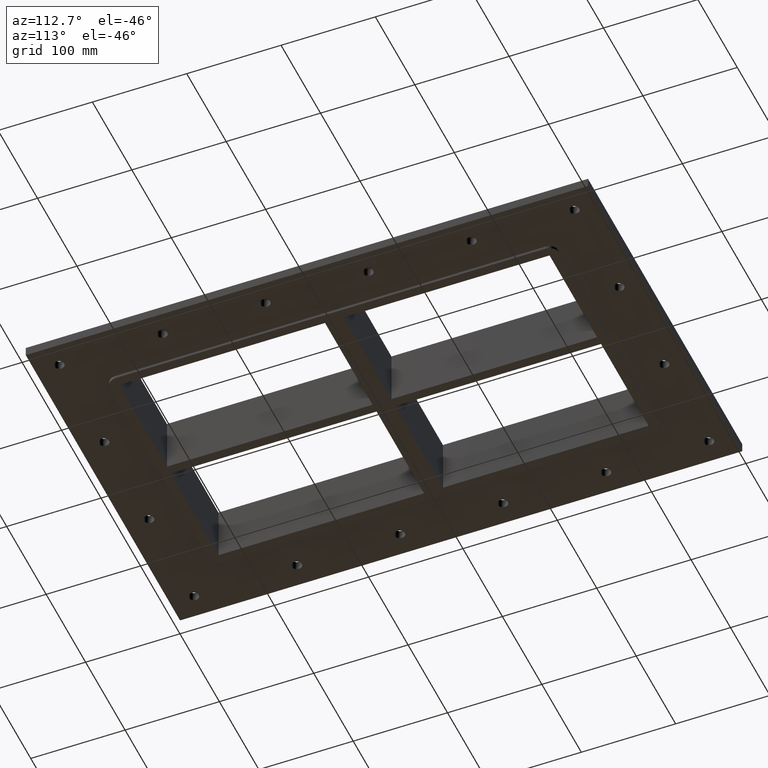
[diagram: clean part render]
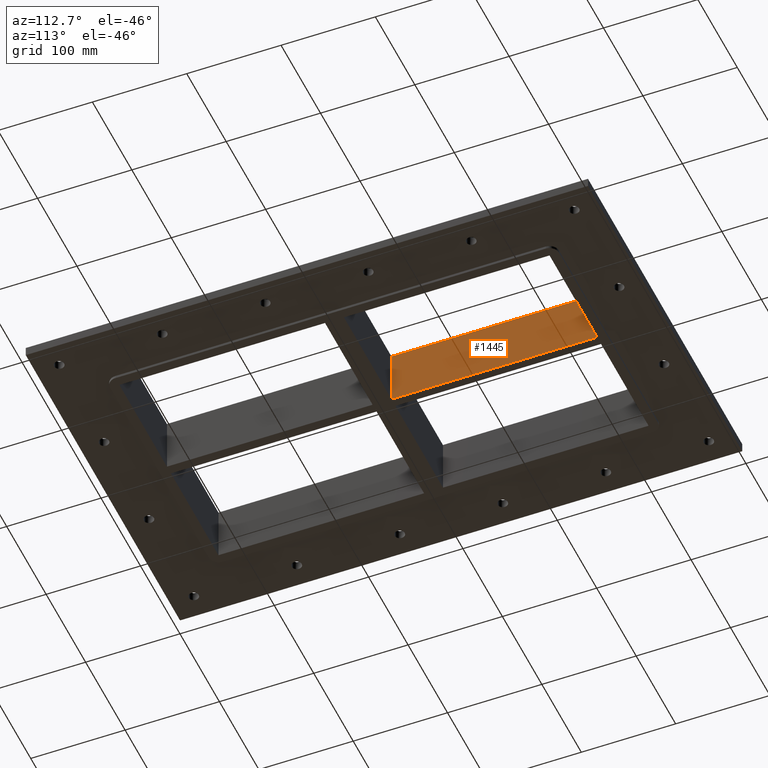
[diagram: same view with one face highlighted and labeled with its STEP entity id]
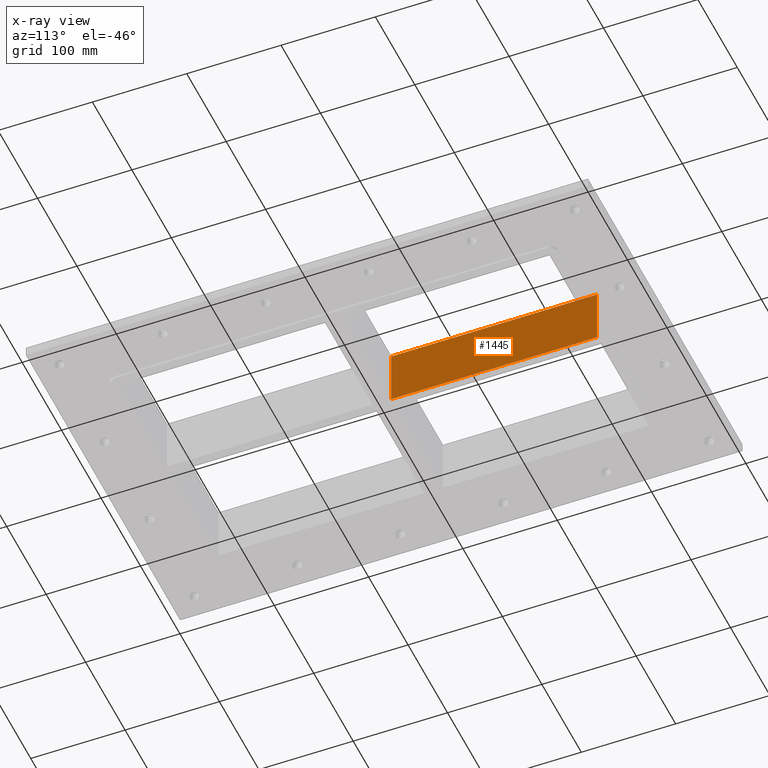
[diagram: x-ray of the same camera — body ghosted, the highlighted face saturated]
A machine part, auxiliary view. The second image highlights one B-rep face of the part: STEP entity #1445.
The next image is the same camera in x-ray: the body ghosted, the highlighted face saturated — about 0% of this face is hidden behind the body in this view.
In plain terms, the highlighted planar face has unit normal (-1, 0, 0).
Its self-contained STEP definition (entity closure, byte-faithful):
#1170=CARTESIAN_POINT('',(4.999999999999965,227.99999999999994,-30.0));
#1171=VERTEX_POINT('',#1170);
#1172=CARTESIAN_POINT('',(5.000000000000018,9.999999999999858,-30.0));
#1173=VERTEX_POINT('',#1172);
#1174=CARTESIAN_POINT('',(4.999999999999965,227.99999999999991,-30.0));
#1175=DIRECTION('',(0.0,-1.0,0.0));
#1176=VECTOR('',#1175,218.00000000000006);
#1177=LINE('',#1174,#1176);
#1178=EDGE_CURVE('',#1171,#1173,#1177,.T.);
#1415=CARTESIAN_POINT('',(5.000000000000018,9.999999999999858,30.0));
#1416=DIRECTION('',(-1.0,0.0,0.0));
#1417=DIRECTION('',(0.0,1.0,0.0));
#1418=AXIS2_PLACEMENT_3D('',#1415,#1416,#1417);
#1419=PLANE('',#1418);
#1420=ORIENTED_EDGE('',*,*,#1178,.F.);
#1421=CARTESIAN_POINT('',(4.999999999999965,227.99999999999994,30.0));
#1422=VERTEX_POINT('',#1421);
#1423=CARTESIAN_POINT('',(4.999999999999965,227.99999999999994,30.0));
#1424=DIRECTION('',(0.0,0.0,-1.0));
#1425=VECTOR('',#1424,60.0);
#1426=LINE('',#1423,#1425);
#1427=EDGE_CURVE('',#1422,#1171,#1426,.T.);
#1428=ORIENTED_EDGE('',*,*,#1427,.F.);
#1429=CARTESIAN_POINT('',(5.000000000000018,9.999999999999858,30.0));
#1430=VERTEX_POINT('',#1429);
#1431=CARTESIAN_POINT('',(5.000000000000018,9.999999999999858,30.0));
#1432=DIRECTION('',(0.0,1.0,0.0));
#1433=VECTOR('',#1432,218.00000000000006);
#1434=LINE('',#1431,#1433);
#1435=EDGE_CURVE('',#1430,#1422,#1434,.T.);
#1436=ORIENTED_EDGE('',*,*,#1435,.F.);
#1437=CARTESIAN_POINT('',(5.000000000000018,9.999999999999858,30.0));
#1438=DIRECTION('',(0.0,0.0,-1.0));
#1439=VECTOR('',#1438,60.0);
#1440=LINE('',#1437,#1439);
#1441=EDGE_CURVE('',#1430,#1173,#1440,.T.);
#1442=ORIENTED_EDGE('',*,*,#1441,.T.);
#1443=EDGE_LOOP('',(#1420,#1428,#1436,#1442));
#1444=FACE_OUTER_BOUND('',#1443,.T.);
#1445=ADVANCED_FACE('',(#1444),#1419,.F.);